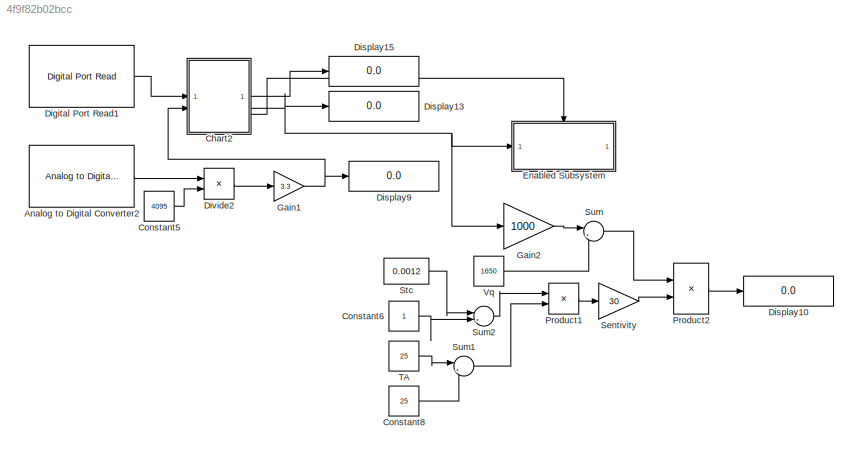
MODEL slx_4f9f82b02bcc
KIND model
CONFIG AbsTol = auto
CONFIG EnableMultiTasking = on
CONFIG FixedStep = auto
CONFIG MaxStep = auto
CONFIG MinStep = auto
CONFIG RelTol = 1e-3
CONFIG SampleTimeConstraint = Unconstrained
CONFIG SolverName = FixedStepAuto
CONFIG StartTime = 0.0
CONFIG StopTime = inf
BLOCK [Reference] Analog to Digital Converter2  REF=stm32f4xxblockslib/Analog to Digital Converter
  LibrarySourceBlock = stm32g4xxblockslib/Analog to Digital Converter
  SourceBlock = stm32f4xxblockslib/Analog to Digital Converter
  SourceType = stm32cube.blocks.AnalogInput
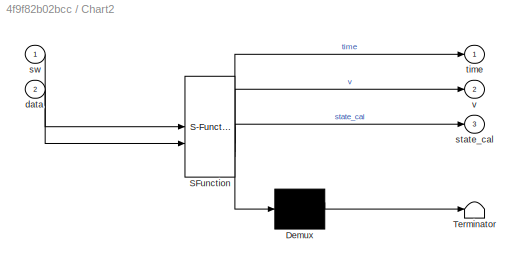
BLOCK [SubSystem] Chart2
  ErrorFcn = Stateflow.Translate.translate
  PermitHierarchicalResolution = ExplicitOnly
  PortSchema = {"entries":[{"content":{"sides":[{"content":{"connectorIds":["In1","In2"]},"type":"ConnectorPlacement.EquallySpacedRectSide","uuid":"5ec4fb54-4411-4273-b2fc-39c6053c04e2"},{"content":{"connectorIds":["Out3","Out1","Out2"],"side":"RIGHT"},"type":"ConnectorPlacement.EquallySpacedRectSide","uuid":"7d4fd8d5-e2fa-4e95-bf28-1a2de38ed455"},{"content":{"side":"TOP"},"type":"ConnectorPlacement.EquallySpace...<+242ch>
  SFBlockType = Chart
  TreatAsAtomicUnit = on
BLOCK [Demux] Chart2/ Demux 
  Outputs = 1
BLOCK [S-Function] Chart2/ SFunction 
  EnableBusSupport = on
  FunctionName = sf_sfun
  PortCounts = [2 4]
  SFcnIsStateOwnerBlock = off
  SFunctionDeploymentMode = off
  Tag = Stateflow S-Function 6
BLOCK [Terminator] Chart2/ Terminator 
BLOCK [Inport] Chart2/data
  Port = 2
BLOCK [Outport] Chart2/state_cal
  Port = 3
BLOCK [Inport] Chart2/sw
BLOCK [Outport] Chart2/time
BLOCK [Outport] Chart2/v
  Port = 2
BLOCK [Constant] Constant5
  Value = 4095
BLOCK [Constant] Constant6
BLOCK [Constant] Constant8
  Value = 25
BLOCK [Reference] Digital Port Read1  REF=stm32f4xxblockslib/Digital Port Read
  LibrarySourceBlock = stm32g4xxblockslib/Digital Port Read
  SourceBlock = stm32f4xxblockslib/Digital Port Read
  SourceType = stm32cube.blocks.DigitalPortRead
BLOCK [Display] Display10
  Decimation = 1
BLOCK [Display] Display13
  Decimation = 1
BLOCK [Display] Display15
  Decimation = 1
BLOCK [Display] Display9
  Decimation = 1
BLOCK [Product] Divide2
  Inputs = */
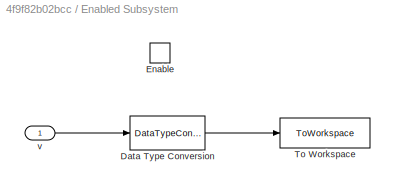
BLOCK [SubSystem] Enabled Subsystem
  TreatAsAtomicUnit = on
BLOCK [DataTypeConversion] Enabled Subsystem/Data Type Conversion
  OutDataTypeStr = double
  RndMeth = Floor
  SaturateOnIntegerOverflow = off
BLOCK [EnablePort] Enabled Subsystem/Enable
BLOCK [ToWorkspace] Enabled Subsystem/To Workspace
  FixptAsFi = on
  MaxDataPoints = inf
  SampleTime = -1
  Save2DSignal = 2-D array (concatenate along first dimension)
  VariableName = simout10
BLOCK [Inport] Enabled Subsystem/v
BLOCK [Gain] Gain1
  Gain = 3.3
BLOCK [Gain] Gain2
  Gain = 1000
BLOCK [Product] Product1
BLOCK [Product] Product2
  Inputs = */
BLOCK [Gain] Sentivity
  Gain = 30
BLOCK [Constant] Stc
  Value = 0.0012
BLOCK [Sum] Sum
  Inputs = |+-
BLOCK [Sum] Sum1
  Inputs = |+-
BLOCK [Sum] Sum2
  Inputs = |++
BLOCK [Constant] TA
  Value = 25
BLOCK [Constant] Vq
  Value = 1650
LINE Analog to Digital Converter2:1 -> Divide2:1
LINE Chart2:1 -> Display15:1
NET Chart2:2 -> Display13:1, Enabled Subsystem:1, Gain2:1
LINE Chart2:3 -> Enabled Subsystem:enable
LINE Constant5:1 -> Divide2:2
LINE Constant6:1 -> Sum2:2
LINE Constant8:1 -> Sum1:2
LINE Digital Port Read1:1 -> Chart2:1
LINE Divide2:1 -> Gain1:1
LINE Enabled Subsystem/Data Type Conversion:1 -> Enabled Subsystem/To Workspace:1
LINE Enabled Subsystem/v:1 -> Enabled Subsystem/Data Type Conversion:1
NET Gain1:1 -> Chart2:2, Display9:1
LINE Gain2:1 -> Sum:1
LINE Product1:1 -> Sentivity:1
LINE Product2:1 -> Display10:1
LINE Sentivity:1 -> Product2:2
LINE Stc:1 -> Sum2:1
LINE Sum1:1 -> Product1:2
LINE Sum2:1 -> Product1:1
LINE Sum:1 -> Product2:1
LINE TA:1 -> Sum1:1
LINE Vq:1 -> Sum:2
note: NET lines group one-source signal fan-out (src -> all destinations, sorted); 1:1 wires keep LINE
CHART Chart2 states=3 transitions=4
  STATE_LABEL 'initial\nv ;\ntime = 0;\nstate_cal = 0;'
  STATE_LABEL 'StopCount\nentry:\nstate_cal = 1'
  STATE_LABEL 'CountData\nentry:\nv = data - data;\nduring:\nv = v + data\ntime=time+0.00714285714\ndata\nexit:\nv = v/140;\n'
CHART  states=0 transitions=0
